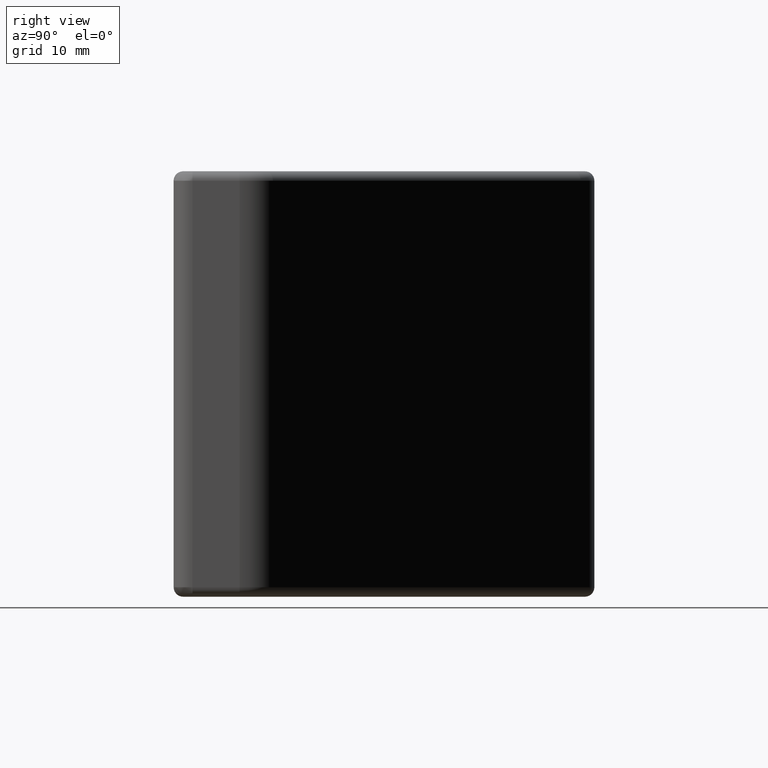
[diagram: clean part render]
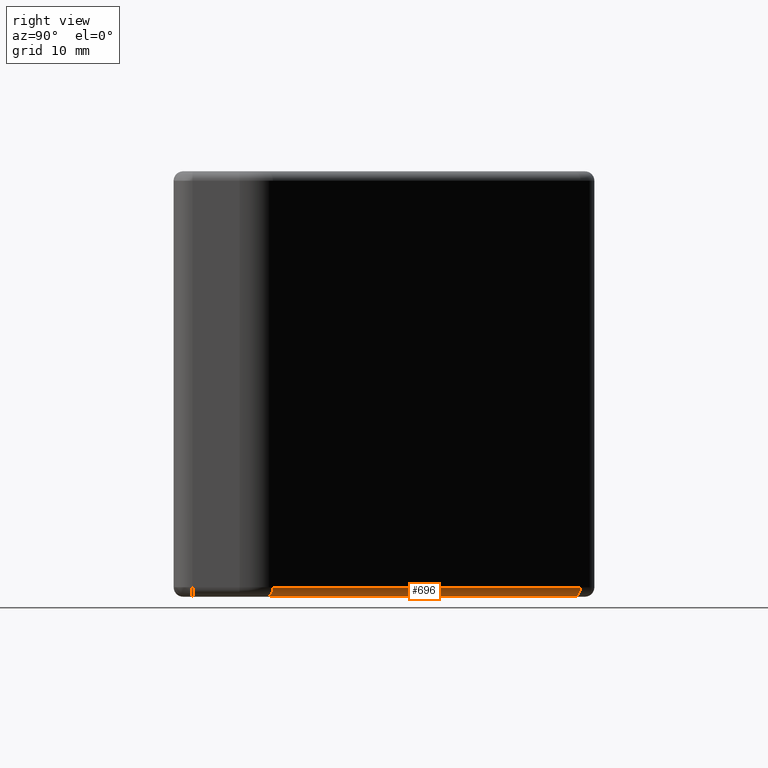
[diagram: same view with one face highlighted and labeled with its STEP entity id]
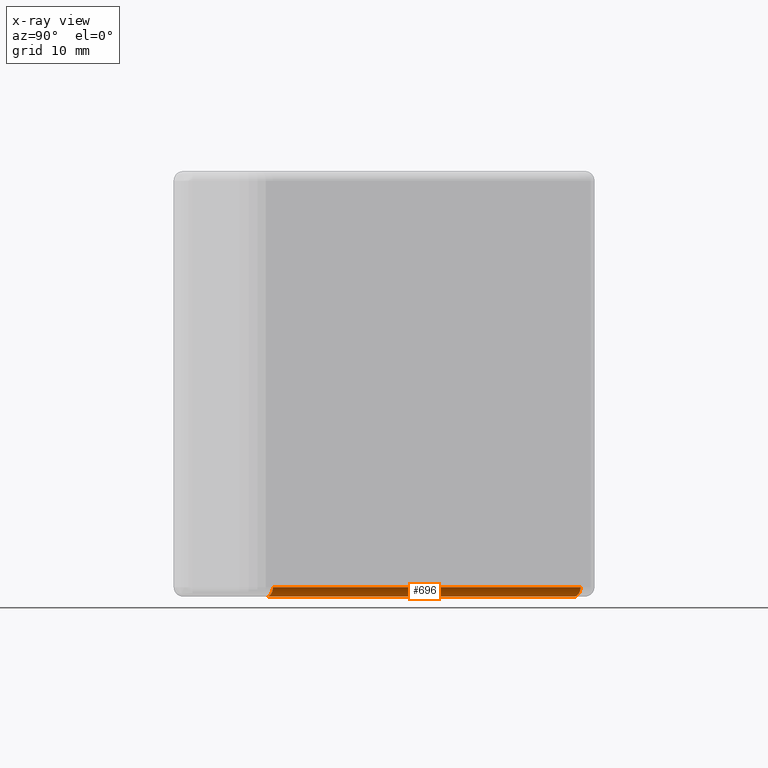
[diagram: x-ray of the same camera — body ghosted, the highlighted face saturated]
A machine part, right view. The second image highlights one B-rep face of the part: STEP entity #696.
The next image is the same camera in x-ray: the body ghosted, the highlighted face saturated — about 0% of this face is hidden behind the body in this view.
In plain terms, the highlighted cylindrical surface (edge-blend (fillet) strip) has radius 1 mm, axis along (-0.7071, 0.7071, 0).
Its self-contained STEP definition (entity closure, byte-faithful):
#36=CYLINDRICAL_SURFACE('',#765,0.999999999999998);
#76=FACE_OUTER_BOUND('',#120,.T.);
#120=EDGE_LOOP('',(#610,#611,#612,#613));
#136=LINE('',#1023,#198);
#174=LINE('',#1115,#236);
#198=VECTOR('',#804,46.0121933088198);
#236=VECTOR('',#876,46.0121933088198);
#281=CIRCLE('',#766,0.999999999999999);
#282=CIRCLE('',#767,0.999999999999999);
#300=VERTEX_POINT('',#1019);
#302=VERTEX_POINT('',#1022);
#338=VERTEX_POINT('',#1112);
#339=VERTEX_POINT('',#1114);
#361=EDGE_CURVE('',#300,#302,#136,.T.);
#406=EDGE_CURVE('',#338,#339,#174,.T.);
#439=EDGE_CURVE('',#338,#302,#281,.T.);
#440=EDGE_CURVE('',#300,#339,#282,.T.);
#610=ORIENTED_EDGE('',*,*,#406,.F.);
#611=ORIENTED_EDGE('',*,*,#439,.T.);
#612=ORIENTED_EDGE('',*,*,#361,.F.);
#613=ORIENTED_EDGE('',*,*,#440,.T.);
#696=ADVANCED_FACE('',(#76),#36,.T.);
#765=AXIS2_PLACEMENT_3D('',#1210,#962,#963);
#766=AXIS2_PLACEMENT_3D('',#1211,#964,#965);
#767=AXIS2_PLACEMENT_3D('',#1212,#966,#967);
#804=DIRECTION('',(0.707106781186547,-0.707106781186547,0.));
#876=DIRECTION('',(-0.707106781186547,0.707106781186547,0.));
#962=DIRECTION('center_axis',(-0.707106781186548,0.707106781186548,0.));
#963=DIRECTION('ref_axis',(-0.707106781186548,-0.707106781186548,0.));
#964=DIRECTION('center_axis',(-0.707106781186549,0.707106781186546,0.));
#965=DIRECTION('ref_axis',(-0.707106781186546,-0.707106781186549,0.));
#966=DIRECTION('center_axis',(0.707106781186546,-0.707106781186549,0.));
#967=DIRECTION('ref_axis',(0.707106781186549,0.707106781186546,0.));
#1019=CARTESIAN_POINT('',(9.79289321881345,42.3284271247462,-22.5));
#1022=CARTESIAN_POINT('',(42.3284271247462,9.79289321881345,-22.5));
#1023=CARTESIAN_POINT('',(5.06066017177982,47.0606601717798,-22.5));
#1112=CARTESIAN_POINT('',(43.0355339059328,10.5,-21.5));
#1114=CARTESIAN_POINT('',(10.5,43.0355339059328,-21.5));
#1115=CARTESIAN_POINT('',(44.5,9.03553390593274,-21.5));
#1210=CARTESIAN_POINT('Origin',(43.7928932188135,8.32842712474619,-21.5));
#1211=CARTESIAN_POINT('Origin',(42.3284271247462,9.79289321881345,-21.5));
#1212=CARTESIAN_POINT('Origin',(9.79289321881345,42.3284271247462,-21.5));